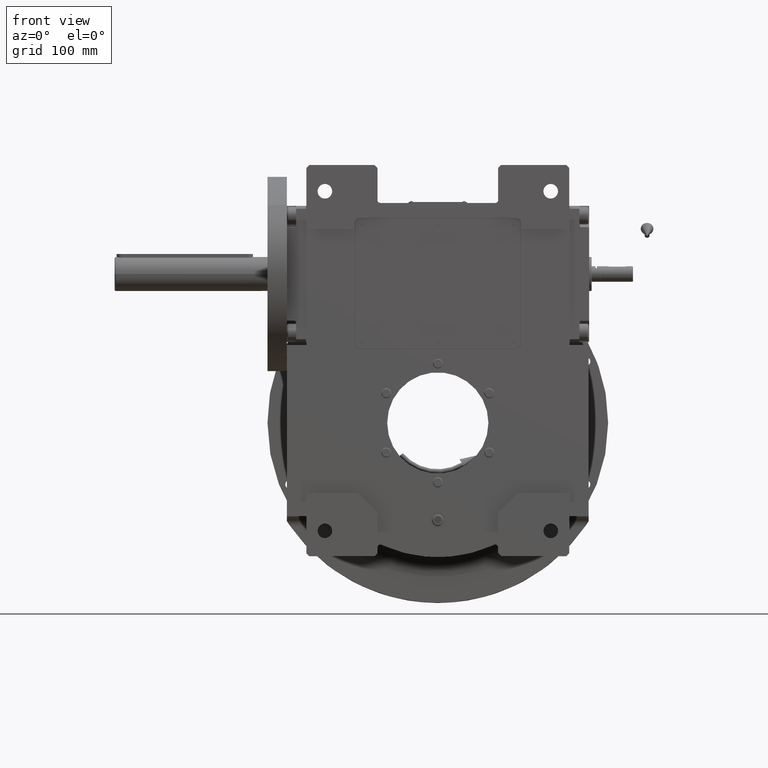
[diagram: clean part render]
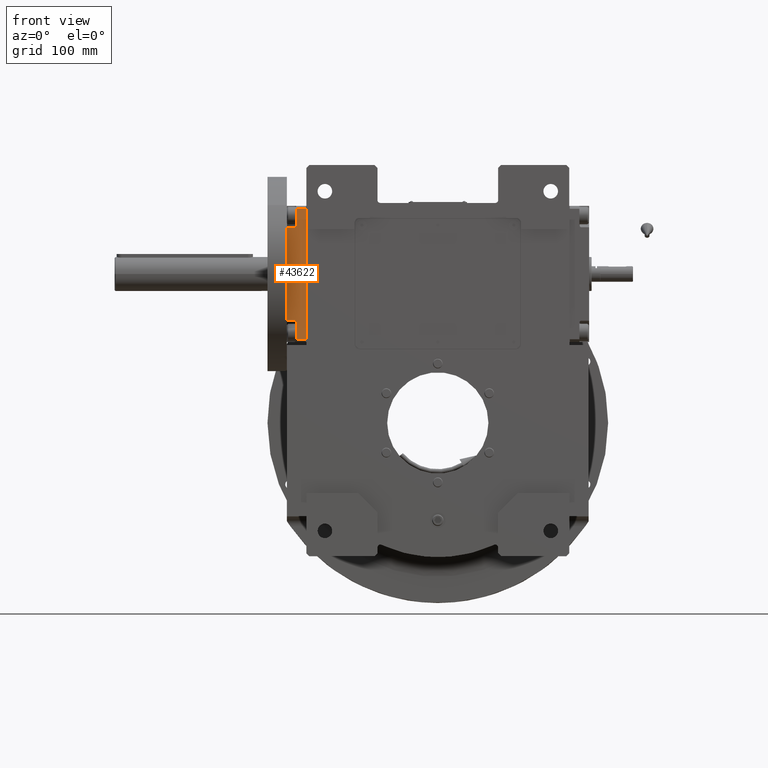
[diagram: same view with one face highlighted and labeled with its STEP entity id]
A machine part, front view. The second image highlights one B-rep face of the part: STEP entity #43622.
In plain terms, the highlighted planar face has unit normal (0, -1, 0).
Its self-contained STEP definition (entity closure, byte-faithful):
#1944 = ORIENTED_EDGE ( 'NONE', *, *, #25148, .T. ) ;
#2434 = CARTESIAN_POINT ( 'NONE',  ( -48.00000000000157030, -11.99999999999895550, -70.00000000000127898 ) ) ;
#2793 = FACE_OUTER_BOUND ( 'NONE', #35314, .T. ) ;
#3273 = EDGE_CURVE ( 'NONE', #40894, #11526, #28913, .T. ) ;
#4455 = LINE ( 'NONE', #21193, #35623 ) ;
#5442 = EDGE_CURVE ( 'NONE', #25277, #68971, #8560, .T. ) ;
#7812 = VECTOR ( 'NONE', #70423, 1000.000000000000000 ) ;
#8560 = CIRCLE ( 'NONE', #67808, 2.000000000000000000 ) ;
#10095 = LINE ( 'NONE', #32275, #21953 ) ;
#11526 = VERTEX_POINT ( 'NONE', #59406 ) ;
#12125 = DIRECTION ( 'NONE',  ( -1.000000000000000000, 2.320366121466573383E-14, -2.342570581959080616E-14 ) ) ;
#12621 = AXIS2_PLACEMENT_3D ( 'NONE', #24982, #69686, #47135 ) ;
#12624 = ORIENTED_EDGE ( 'NONE', *, *, #66544, .F. ) ;
#17107 = CARTESIAN_POINT ( 'NONE',  ( 49.99999999999896261, -12.00000000000106581, -69.99999999999873523 ) ) ;
#18120 = CARTESIAN_POINT ( 'NONE',  ( -50.00000000000157030, -9.999999999998953726, -70.00000000000127898 ) ) ;
#19033 = CARTESIAN_POINT ( 'NONE',  ( 66.99999999999897682, -10.00000000000106404, -69.99999999999847944 ) ) ;
#20185 = CARTESIAN_POINT ( 'NONE',  ( 66.99999999999897682, -1.054711873393898713E-12, -69.99999999999847944 ) ) ;
#21193 = CARTESIAN_POINT ( 'NONE',  ( -48.00000000000104450, -19.99999999999893419, -70.00000000000127898 ) ) ;
#21860 = EDGE_CURVE ( 'NONE', #40894, #68971, #36930, .T. ) ;
#21953 = VECTOR ( 'NONE', #27221, 1000.000000000000000 ) ;
#22406 = CARTESIAN_POINT ( 'NONE',  ( -67.00000000000153477, 2.109423746787797427E-12, -70.00000000000153477 ) ) ;
#22409 = VERTEX_POINT ( 'NONE', #60408 ) ;
#24982 = CARTESIAN_POINT ( 'NONE',  ( 69.99999999999897682, -1.054711873393898713E-12, -69.99999999999847944 ) ) ;
#25148 = EDGE_CURVE ( 'NONE', #40029, #44165, #41186, .T. ) ;
#25277 = VERTEX_POINT ( 'NONE', #53558 ) ;
#26599 = VECTOR ( 'NONE', #57582, 1000.000000000000000 ) ;
#27221 = DIRECTION ( 'NONE',  ( 1.000000000000000000, -2.320366121466573383E-14, 2.342570581959080616E-14 ) ) ;
#27558 = VERTEX_POINT ( 'NONE', #2434 ) ;
#28850 = CARTESIAN_POINT ( 'NONE',  ( 66.99999999999897682, -1.054711873393898713E-12, -69.99999999999847944 ) ) ;
#28913 = LINE ( 'NONE', #52129, #26599 ) ;
#32037 = ORIENTED_EDGE ( 'NONE', *, *, #43814, .F. ) ;
#32275 = CARTESIAN_POINT ( 'NONE',  ( -67.00000000000153477, -9.999999999997900346, -70.00000000000153477 ) ) ;
#32564 = VECTOR ( 'NONE', #52127, 1000.000000000000000 ) ;
#35314 = EDGE_LOOP ( 'NONE', ( #45606, #1944, #69919, #62370, #52180, #55503, #38842, #59616, #12624, #32037 ) ) ;
#35623 = VECTOR ( 'NONE', #43350, 1000.000000000000000 ) ;
#36930 = LINE ( 'NONE', #59487, #7812 ) ;
#38504 = EDGE_CURVE ( 'NONE', #27558, #61422, #51709, .T. ) ;
#38842 = ORIENTED_EDGE ( 'NONE', *, *, #41808, .T. ) ;
#40029 = VERTEX_POINT ( 'NONE', #20185 ) ;
#40894 = VERTEX_POINT ( 'NONE', #59243 ) ;
#41186 = LINE ( 'NONE', #45958, #32564 ) ;
#41284 = PLANE ( 'NONE',  #12621 ) ;
#41808 = EDGE_CURVE ( 'NONE', #11526, #27558, #4455, .T. ) ;
#41938 = VECTOR ( 'NONE', #62290, 1000.000000000000000 ) ;
#42532 = DIRECTION ( 'NONE',  ( 2.342570581959080616E-14, -1.110223024629760530E-16, 1.000000000000000000 ) ) ;
#43117 = DIRECTION ( 'NONE',  ( 1.000000000000000000, -2.341876692568687369E-14, 2.081668171172166620E-14 ) ) ;
#43350 = DIRECTION ( 'NONE',  ( -2.320366121466572121E-14, 1.000000000000000000, -1.110223024626271053E-16 ) ) ;
#43622 = ADVANCED_FACE ( 'NONE', ( #2793 ), #41284, .T. ) ;
#43814 = EDGE_CURVE ( 'NONE', #65995, #22409, #50010, .T. ) ;
#44165 = VERTEX_POINT ( 'NONE', #68894 ) ;
#44567 = DIRECTION ( 'NONE',  ( 2.320366121466572121E-14, -1.000000000000000000, 1.110223024626271053E-16 ) ) ;
#45606 = ORIENTED_EDGE ( 'NONE', *, *, #59862, .F. ) ;
#45958 = CARTESIAN_POINT ( 'NONE',  ( 66.99999999999897682, -1.054711873393898713E-12, -69.99999999999847944 ) ) ;
#47135 = DIRECTION ( 'NONE',  ( -1.000000000000000000, 2.320366121466573383E-14, -2.342570581959080616E-14 ) ) ;
#48343 = EDGE_CURVE ( 'NONE', #44165, #25277, #51754, .T. ) ;
#50010 = LINE ( 'NONE', #22406, #57906 ) ;
#50173 = VECTOR ( 'NONE', #12125, 1000.000000000000000 ) ;
#50578 = AXIS2_PLACEMENT_3D ( 'NONE', #65311, #65668, #43117 ) ;
#51709 = CIRCLE ( 'NONE', #50578, 2.000000000000001776 ) ;
#51754 = LINE ( 'NONE', #19033, #41938 ) ;
#52127 = DIRECTION ( 'NONE',  ( 2.320366121466572121E-14, -1.000000000000000000, 1.110223024626271053E-16 ) ) ;
#52129 = CARTESIAN_POINT ( 'NONE',  ( 47.99999999999896261, -20.00000000000104450, -69.99999999999873523 ) ) ;
#52180 = ORIENTED_EDGE ( 'NONE', *, *, #21860, .F. ) ;
#53558 = CARTESIAN_POINT ( 'NONE',  ( 49.99999999999896261, -10.00000000000106404, -69.99999999999873523 ) ) ;
#55503 = ORIENTED_EDGE ( 'NONE', *, *, #3273, .T. ) ;
#56788 = CARTESIAN_POINT ( 'NONE',  ( 47.99999999999896261, -12.00000000000106581, -69.99999999999873523 ) ) ;
#57582 = DIRECTION ( 'NONE',  ( -1.000000000000000000, 2.320366121466573383E-14, -2.342570581959080616E-14 ) ) ;
#57906 = VECTOR ( 'NONE', #44567, 1000.000000000000000 ) ;
#59243 = CARTESIAN_POINT ( 'NONE',  ( 47.99999999999896261, -20.00000000000104450, -69.99999999999873523 ) ) ;
#59406 = CARTESIAN_POINT ( 'NONE',  ( -48.00000000000104450, -19.99999999999893419, -70.00000000000127898 ) ) ;
#59487 = CARTESIAN_POINT ( 'NONE',  ( 47.99999999999896261, -20.00000000000104450, -69.99999999999873523 ) ) ;
#59616 = ORIENTED_EDGE ( 'NONE', *, *, #38504, .T. ) ;
#59862 = EDGE_CURVE ( 'NONE', #40029, #65995, #61918, .T. ) ;
#60408 = CARTESIAN_POINT ( 'NONE',  ( -67.00000000000153477, -9.999999999997900346, -70.00000000000153477 ) ) ;
#61422 = VERTEX_POINT ( 'NONE', #18120 ) ;
#61918 = LINE ( 'NONE', #28850, #50173 ) ;
#62290 = DIRECTION ( 'NONE',  ( -1.000000000000000000, 2.320366121466573383E-14, -2.342570581959080616E-14 ) ) ;
#62370 = ORIENTED_EDGE ( 'NONE', *, *, #5442, .T. ) ;
#65311 = CARTESIAN_POINT ( 'NONE',  ( -50.00000000000157030, -11.99999999999895550, -70.00000000000127898 ) ) ;
#65668 = DIRECTION ( 'NONE',  ( 2.342570581959080616E-14, -1.110223024629760530E-16, 1.000000000000000000 ) ) ;
#65995 = VERTEX_POINT ( 'NONE', #66884 ) ;
#66544 = EDGE_CURVE ( 'NONE', #22409, #61422, #10095, .T. ) ;
#66884 = CARTESIAN_POINT ( 'NONE',  ( -67.00000000000153477, 2.109423746787797427E-12, -70.00000000000153477 ) ) ;
#67808 = AXIS2_PLACEMENT_3D ( 'NONE', #17107, #42532, #70927 ) ;
#68894 = CARTESIAN_POINT ( 'NONE',  ( 66.99999999999897682, -10.00000000000106404, -69.99999999999847944 ) ) ;
#68971 = VERTEX_POINT ( 'NONE', #56788 ) ;
#69686 = DIRECTION ( 'NONE',  ( 2.342570581959080931E-14, 1.110223024618889287E-16, -1.000000000000000000 ) ) ;
#69919 = ORIENTED_EDGE ( 'NONE', *, *, #48343, .T. ) ;
#70423 = DIRECTION ( 'NONE',  ( -2.320366121466572121E-14, 1.000000000000000000, -1.110223024626271053E-16 ) ) ;
#70927 = DIRECTION ( 'NONE',  ( -2.428612866367529932E-14, 1.000000000000000000, 0.000000000000000000 ) ) ;